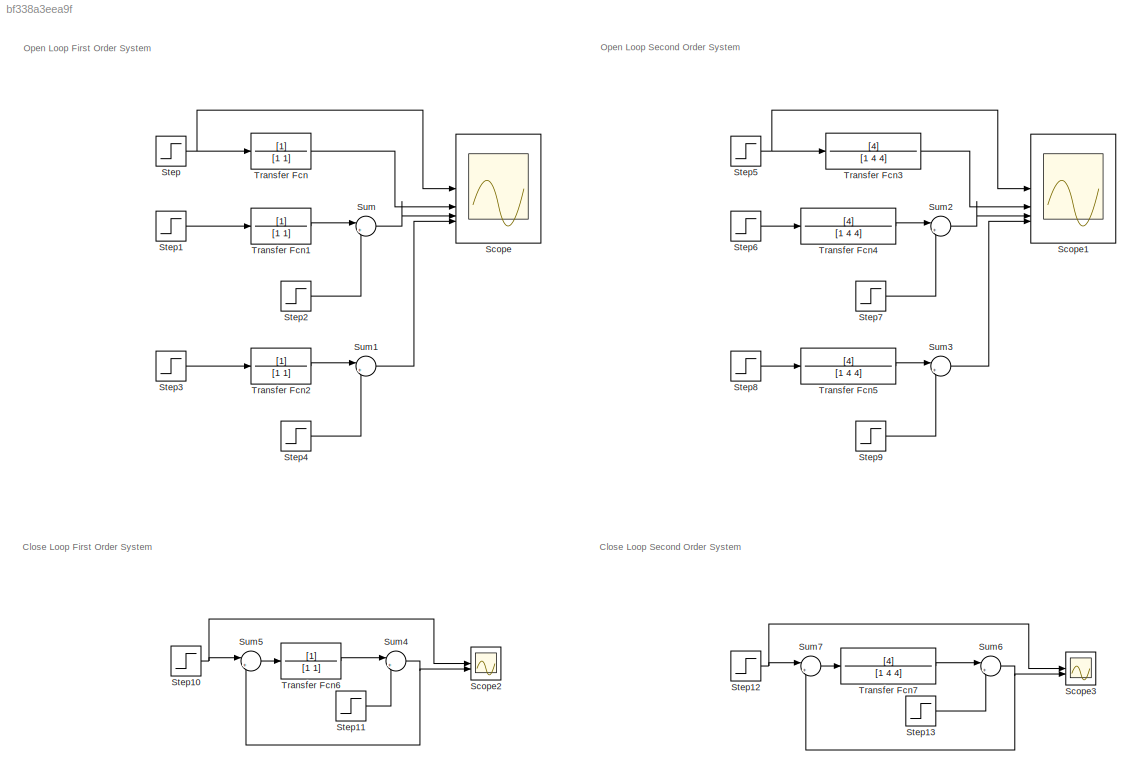
MODEL slx_bf338a3eea9f
KIND model
CONFIG AbsTol = auto
CONFIG EnableMultiTasking = off
CONFIG FixedStep = auto
CONFIG MaxStep = auto
CONFIG MinStep = auto
CONFIG RelTol = 1e-3
CONFIG SampleTimeConstraint = Unconstrained
CONFIG SolverName = VariableStepAuto
CONFIG StartTime = 0.0
CONFIG StopTime = 10.0
BLOCK [Scope] Scope
  Floating = off
  NumInputPorts = 4
  ScopeSpecificationString = Simulink.scopes.TimeScopeBlockCfg('CurrentConfiguration', extmgr.ConfigurationSet(extmgr.Configuration('Core','General UI',true),extmgr.Configuration('Core','Source UI',true),extmgr.Configuration('Sources','WiredSimulink',true),extmgr.Configuration('Visuals','Time Domain',true,'SerializedDisplays',{struct('MinYLimReal','-0.21248','MaxYLimReal','1.91236','YLabelReal','','MinYLimMag','0.00000','MaxY...<+1352ch>
BLOCK [Scope] Scope1
  Floating = off
  NumInputPorts = 4
  ScopeSpecificationString = Simulink.scopes.TimeScopeBlockCfg('CurrentConfiguration', extmgr.ConfigurationSet(extmgr.Configuration('Core','General UI',true),extmgr.Configuration('Core','Source UI',true),extmgr.Configuration('Sources','WiredSimulink',true,'DataLoggingVariableName','ScopeData1'),extmgr.Configuration('Visuals','Time Domain',true,'SerializedDisplays',{struct('MinYLimReal','-0.2125','MaxYLimReal','1.9125','YLabel...<+1388ch>
BLOCK [Scope] Scope2
  Floating = off
  NumInputPorts = 2
  ScopeSpecificationString = Simulink.scopes.TimeScopeBlockCfg('CurrentConfiguration', extmgr.ConfigurationSet(extmgr.Configuration('Core','General UI',true),extmgr.Configuration('Core','Source UI',true),extmgr.Configuration('Sources','WiredSimulink',true,'DataLoggingVariableName','ScopeData2'),extmgr.Configuration('Visuals','Time Domain',true,'SerializedDisplays',{struct('MinYLimReal','-0.125','MaxYLimReal','1.125','YLabelRe...<+1389ch>
BLOCK [Scope] Scope3
  Floating = off
  NumInputPorts = 2
  ScopeSpecificationString = Simulink.scopes.TimeScopeBlockCfg('CurrentConfiguration', extmgr.ConfigurationSet(extmgr.Configuration('Core','General UI',true),extmgr.Configuration('Core','Source UI',true),extmgr.Configuration('Sources','WiredSimulink',true,'DataLoggingVariableName','ScopeData3'),extmgr.Configuration('Visuals','Time Domain',true,'SerializedDisplays',{struct('MinYLimReal','-0.89797','MaxYLimReal','1.21089','YLab...<+1401ch>
BLOCK [Step] Step
  SampleTime = 0
BLOCK [Step] Step1
  SampleTime = 0
BLOCK [Step] Step10
  SampleTime = 0
BLOCK [Step] Step11
  After = 0.3
  SampleTime = 0
  Time = 5
BLOCK [Step] Step12
  SampleTime = 0
BLOCK [Step] Step13
  After = 1.2
  SampleTime = 0
  Time = 3
BLOCK [Step] Step2
  After = 0.7
  SampleTime = 0
  Time = 3
BLOCK [Step] Step3
  SampleTime = 0
BLOCK [Step] Step4
  After = 0.7
  SampleTime = 0
  Time = 3
BLOCK [Step] Step5
  SampleTime = 0
BLOCK [Step] Step6
  SampleTime = 0
BLOCK [Step] Step7
  After = 0.7
  SampleTime = 0
  Time = 3
BLOCK [Step] Step8
  SampleTime = 0
BLOCK [Step] Step9
  After = 0.7
  SampleTime = 0
  Time = 3
BLOCK [Sum] Sum
  Inputs = |+-
BLOCK [Sum] Sum1
  Inputs = |++
BLOCK [Sum] Sum2
  Inputs = |+-
BLOCK [Sum] Sum3
  Inputs = |++
BLOCK [Sum] Sum4
  Inputs = |+-
BLOCK [Sum] Sum5
  Inputs = |+-
BLOCK [Sum] Sum6
  Inputs = |+-
BLOCK [Sum] Sum7
  Inputs = |+-
BLOCK [TransferFcn] Transfer Fcn
  Denominator = [1 1]
BLOCK [TransferFcn] Transfer Fcn1
  Denominator = [1 1]
BLOCK [TransferFcn] Transfer Fcn2
  Denominator = [1 1]
BLOCK [TransferFcn] Transfer Fcn3
  Denominator = [1 4 4]
  Numerator = [4]
BLOCK [TransferFcn] Transfer Fcn4
  Denominator = [1 4 4]
  Numerator = [4]
BLOCK [TransferFcn] Transfer Fcn5
  Denominator = [1 4 4]
  Numerator = [4]
BLOCK [TransferFcn] Transfer Fcn6
  Denominator = [1 1]
BLOCK [TransferFcn] Transfer Fcn7
  Denominator = [1 4 4]
  Numerator = [4]
ANNOTATION (root): Close Loop First Order System
ANNOTATION (root): Close Loop Second Order System
ANNOTATION (root): Open Loop First Order System
ANNOTATION (root): Open Loop Second Order System
NET Step10:1 -> Scope2:1, Sum5:1
LINE Step11:1 -> Sum4:2
NET Step12:1 -> Scope3:1, Sum7:1
LINE Step13:1 -> Sum6:2
LINE Step1:1 -> Transfer Fcn1:1
LINE Step2:1 -> Sum:2
LINE Step3:1 -> Transfer Fcn2:1
LINE Step4:1 -> Sum1:2
NET Step5:1 -> Scope1:1, Transfer Fcn3:1
LINE Step6:1 -> Transfer Fcn4:1
LINE Step7:1 -> Sum2:2
LINE Step8:1 -> Transfer Fcn5:1
LINE Step9:1 -> Sum3:2
NET Step:1 -> Scope:1, Transfer Fcn:1
LINE Sum1:1 -> Scope:4
LINE Sum2:1 -> Scope1:3
LINE Sum3:1 -> Scope1:4
NET Sum4:1 -> Scope2:2, Sum5:2
LINE Sum5:1 -> Transfer Fcn6:1
NET Sum6:1 -> Scope3:2, Sum7:2
LINE Sum7:1 -> Transfer Fcn7:1
LINE Sum:1 -> Scope:3
LINE Transfer Fcn1:1 -> Sum:1
LINE Transfer Fcn2:1 -> Sum1:1
LINE Transfer Fcn3:1 -> Scope1:2
LINE Transfer Fcn4:1 -> Sum2:1
LINE Transfer Fcn5:1 -> Sum3:1
LINE Transfer Fcn6:1 -> Sum4:1
LINE Transfer Fcn7:1 -> Sum6:1
LINE Transfer Fcn:1 -> Scope:2
note: NET lines group one-source signal fan-out (src -> all destinations, sorted); 1:1 wires keep LINE
